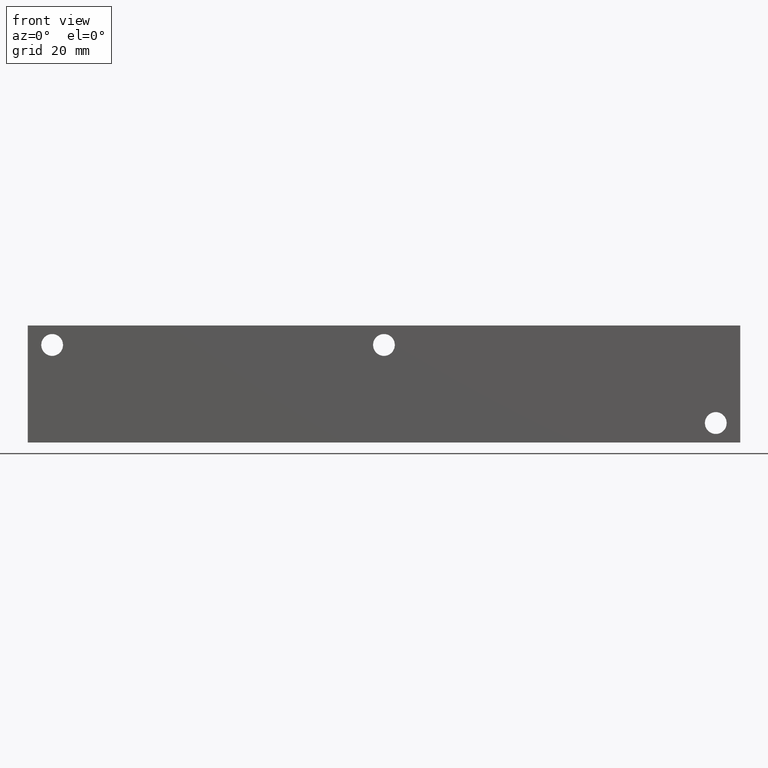
[diagram: clean part render]
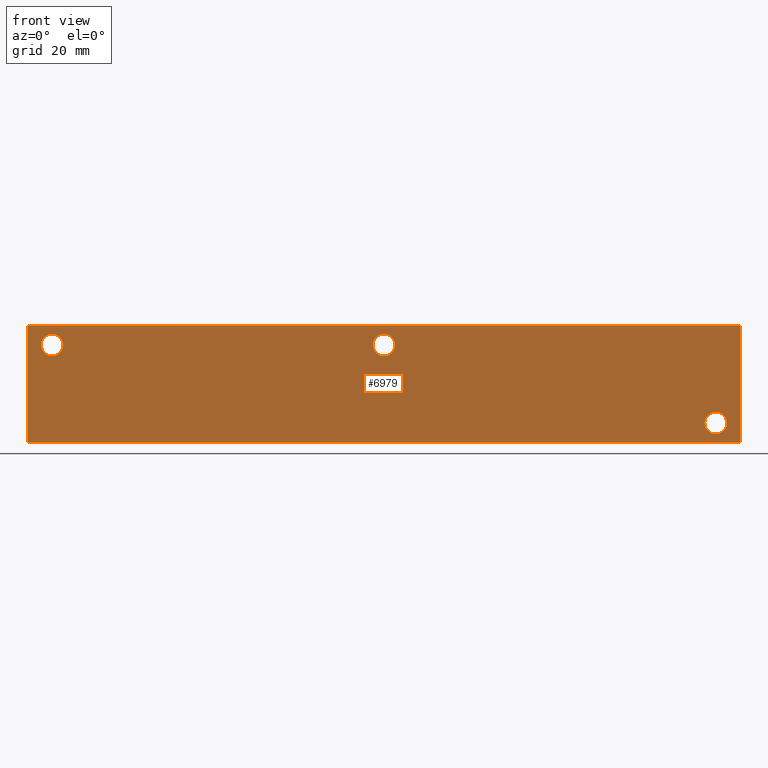
[diagram: same view with one face highlighted and labeled with its STEP entity id]
A machine part, front view. The second image highlights one B-rep face of the part: STEP entity #6979.
In plain terms, the highlighted planar face has unit normal (0, -1, 0).
Its self-contained STEP definition (entity closure, byte-faithful):
#80=CIRCLE('',#7213,3.5687);
#81=CIRCLE('',#7214,3.5687);
#83=CIRCLE('',#7222,3.5687);
#84=CIRCLE('',#7223,3.5687);
#86=CIRCLE('',#7231,3.5687);
#87=CIRCLE('',#7232,3.5687);
#187=FACE_BOUND('',#1162,.T.);
#188=FACE_BOUND('',#1163,.T.);
#189=FACE_BOUND('',#1164,.T.);
#402=PLANE('',#7327);
#756=FACE_OUTER_BOUND('',#1161,.T.);
#1161=EDGE_LOOP('',(#6207,#6208,#6209,#6210));
#1162=EDGE_LOOP('',(#6211,#6212));
#1163=EDGE_LOOP('',(#6213,#6214));
#1164=EDGE_LOOP('',(#6215,#6216));
#1406=LINE('',#10813,#2067);
#1824=LINE('',#11985,#2485);
#1829=LINE('',#11994,#2490);
#1830=LINE('',#11996,#2491);
#2067=VECTOR('',#7682,10.);
#2485=VECTOR('',#8644,10.);
#2490=VECTOR('',#8653,10.);
#2491=VECTOR('',#8656,10.);
#2992=VERTEX_POINT('',#10811);
#2993=VERTEX_POINT('',#10812);
#3276=VERTEX_POINT('',#11764);
#3277=VERTEX_POINT('',#11765);
#3281=VERTEX_POINT('',#11780);
#3282=VERTEX_POINT('',#11781);
#3286=VERTEX_POINT('',#11796);
#3287=VERTEX_POINT('',#11797);
#3347=VERTEX_POINT('',#11983);
#3349=VERTEX_POINT('',#11992);
#3782=EDGE_CURVE('',#2992,#2993,#1406,.T.);
#4197=EDGE_CURVE('',#3276,#3277,#80,.T.);
#4198=EDGE_CURVE('',#3277,#3276,#81,.T.);
#4206=EDGE_CURVE('',#3281,#3282,#83,.T.);
#4207=EDGE_CURVE('',#3282,#3281,#84,.T.);
#4215=EDGE_CURVE('',#3286,#3287,#86,.T.);
#4216=EDGE_CURVE('',#3287,#3286,#87,.T.);
#4302=EDGE_CURVE('',#3347,#2992,#1824,.T.);
#4307=EDGE_CURVE('',#3349,#2993,#1829,.T.);
#4308=EDGE_CURVE('',#3347,#3349,#1830,.T.);
#6207=ORIENTED_EDGE('',*,*,#4308,.T.);
#6208=ORIENTED_EDGE('',*,*,#4307,.T.);
#6209=ORIENTED_EDGE('',*,*,#3782,.F.);
#6210=ORIENTED_EDGE('',*,*,#4302,.F.);
#6211=ORIENTED_EDGE('',*,*,#4197,.T.);
#6212=ORIENTED_EDGE('',*,*,#4198,.T.);
#6213=ORIENTED_EDGE('',*,*,#4206,.T.);
#6214=ORIENTED_EDGE('',*,*,#4207,.T.);
#6215=ORIENTED_EDGE('',*,*,#4215,.T.);
#6216=ORIENTED_EDGE('',*,*,#4216,.T.);
#6979=ADVANCED_FACE('',(#756,#187,#188,#189),#402,.T.);
#7213=AXIS2_PLACEMENT_3D('',#11766,#8383,#8384);
#7214=AXIS2_PLACEMENT_3D('',#11767,#8385,#8386);
#7222=AXIS2_PLACEMENT_3D('',#11782,#8403,#8404);
#7223=AXIS2_PLACEMENT_3D('',#11783,#8405,#8406);
#7231=AXIS2_PLACEMENT_3D('',#11798,#8423,#8424);
#7232=AXIS2_PLACEMENT_3D('',#11799,#8425,#8426);
#7327=AXIS2_PLACEMENT_3D('',#11995,#8654,#8655);
#7682=DIRECTION('',(1.,0.,0.));
#8383=DIRECTION('center_axis',(0.,1.,0.));
#8384=DIRECTION('ref_axis',(1.,0.,0.));
#8385=DIRECTION('center_axis',(0.,1.,0.));
#8386=DIRECTION('ref_axis',(1.,0.,0.));
#8403=DIRECTION('center_axis',(0.,1.,0.));
#8404=DIRECTION('ref_axis',(1.,0.,0.));
#8405=DIRECTION('center_axis',(0.,1.,0.));
#8406=DIRECTION('ref_axis',(1.,0.,0.));
#8423=DIRECTION('center_axis',(0.,1.,0.));
#8424=DIRECTION('ref_axis',(1.,0.,0.));
#8425=DIRECTION('center_axis',(0.,1.,0.));
#8426=DIRECTION('ref_axis',(1.,0.,0.));
#8644=DIRECTION('',(0.,0.,1.));
#8653=DIRECTION('',(0.,0.,1.));
#8654=DIRECTION('center_axis',(0.,-1.,0.));
#8655=DIRECTION('ref_axis',(1.,0.,0.));
#8656=DIRECTION('',(1.,0.,0.));
#10811=CARTESIAN_POINT('',(0.,0.,38.1));
#10812=CARTESIAN_POINT('',(231.775,0.,38.1));
#10813=CARTESIAN_POINT('',(0.,0.,38.1));
#11764=CARTESIAN_POINT('',(119.4435,0.,31.75));
#11765=CARTESIAN_POINT('',(112.3061,0.,31.75));
#11766=CARTESIAN_POINT('Origin',(115.8748,0.,31.75));
#11767=CARTESIAN_POINT('Origin',(115.8748,0.,31.75));
#11780=CARTESIAN_POINT('',(11.4935,0.,31.75));
#11781=CARTESIAN_POINT('',(4.3561,0.,31.75));
#11782=CARTESIAN_POINT('Origin',(7.9248,0.,31.75));
#11783=CARTESIAN_POINT('Origin',(7.9248,0.,31.75));
#11796=CARTESIAN_POINT('',(227.3935,0.,6.35));
#11797=CARTESIAN_POINT('',(220.2561,0.,6.35));
#11798=CARTESIAN_POINT('Origin',(223.8248,0.,6.35));
#11799=CARTESIAN_POINT('Origin',(223.8248,0.,6.35));
#11983=CARTESIAN_POINT('',(0.,0.,0.));
#11985=CARTESIAN_POINT('',(0.,0.,0.));
#11992=CARTESIAN_POINT('',(231.775,0.,0.));
#11994=CARTESIAN_POINT('',(231.775,0.,0.));
#11995=CARTESIAN_POINT('Origin',(0.,0.,0.));
#11996=CARTESIAN_POINT('',(0.,0.,0.));